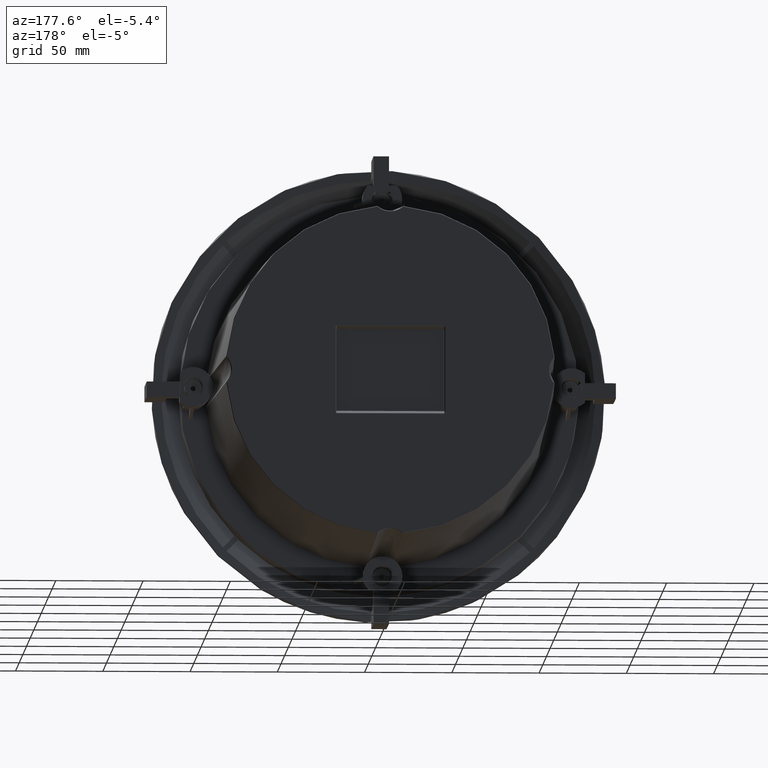
[diagram: clean part render]
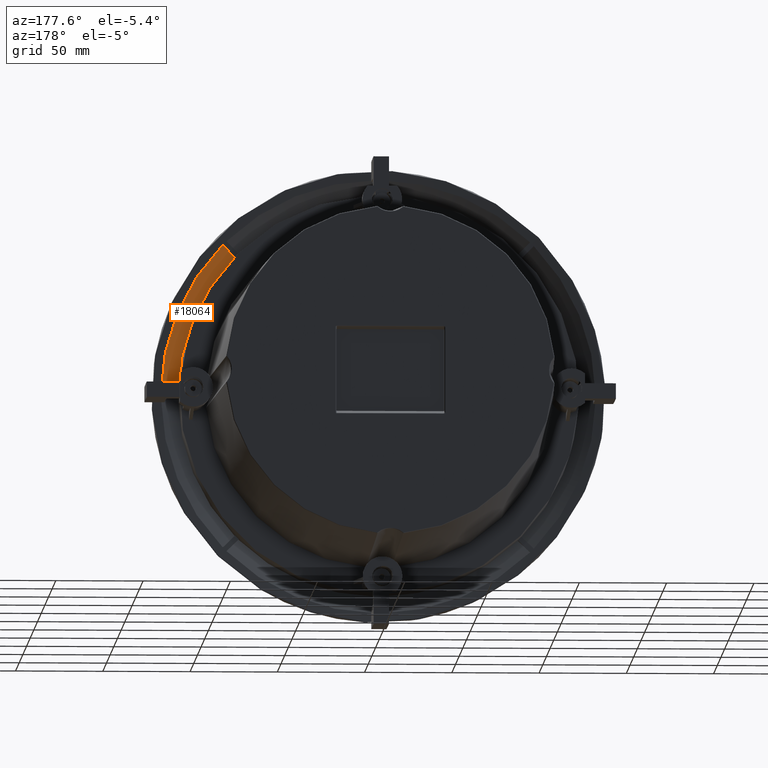
[diagram: same view with one face highlighted and labeled with its STEP entity id]
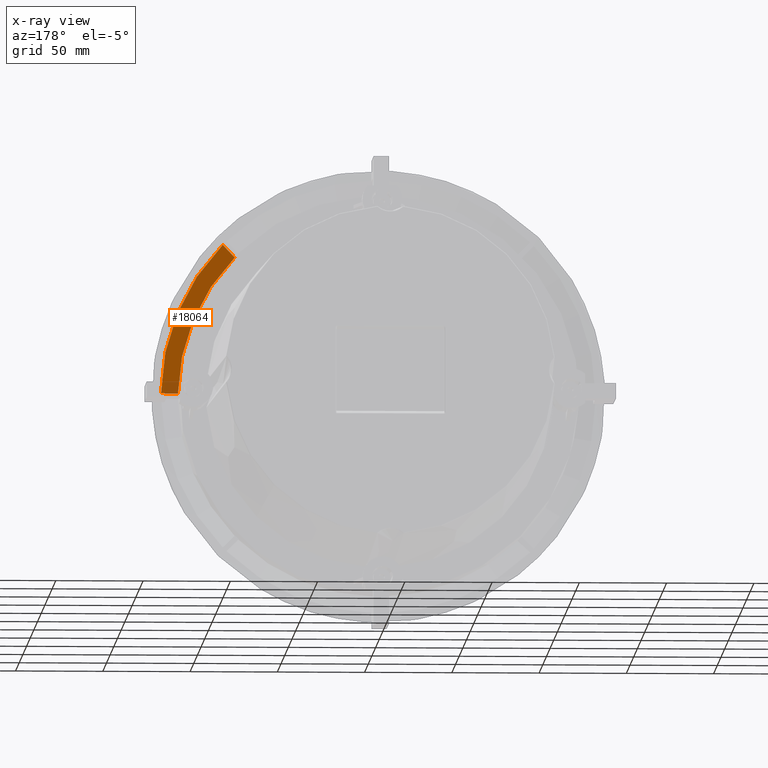
[diagram: x-ray of the same camera — body ghosted, the highlighted face saturated]
A machine part, auxiliary view. The second image highlights one B-rep face of the part: STEP entity #18064.
The next image is the same camera in x-ray: the body ghosted, the highlighted face saturated — about 6% of this face is hidden behind the body in this view.
In plain terms, the highlighted face is a freeform B-spline surface patch.
Its self-contained STEP definition (entity closure, byte-faithful):
#322 = ORIENTED_EDGE ( 'NONE', *, *, #4217, .T. ) ;
#506 = CARTESIAN_POINT ( 'NONE',  ( 129.0369081615271512, -10.92431406673331473, 5.297369443046178183 ) ) ;
#843 = VERTEX_POINT ( 'NONE', #13102 ) ;
#1086 = CARTESIAN_POINT ( 'NONE',  ( 124.5276669081170269, -12.32490501161358409, 1.499999999999757305 ) ) ;
#1113 = CARTESIAN_POINT ( 'NONE',  ( 0.0000000000000000000, -15.66972298474831859, 1.283914725491116015E-14 ) ) ;
#1142 = CARTESIAN_POINT ( 'NONE',  ( 1.060660171779398198, 337.6458333333299606, -1.060660171779389094 ) ) ;
#2001 = FACE_OUTER_BOUND ( 'NONE', #13380, .T. ) ;
#2644 = CARTESIAN_POINT ( 'NONE',  ( 89.11501788784875089, -12.32490501161354501, 86.99369754428967383 ) ) ;
#2837 = DIRECTION ( 'NONE',  ( 1.984726363220650799E-17, 1.000000000000000000, -1.984726363220650799E-17 ) ) ;
#3446 = CARTESIAN_POINT ( 'NONE',  ( 119.9240959355423115, -13.56180508981008970, 36.05439748969068603 ) ) ;
#3547 = CARTESIAN_POINT ( 'NONE',  ( 79.81653812744401932, -17.01416243087751212, 77.69521778388703126 ) ) ;
#3592 = AXIS2_PLACEMENT_3D ( 'NONE', #1113, #11731, #8009 ) ;
#4217 = EDGE_CURVE ( 'NONE', #19017, #843, #11850, .T. ) ;
#4456 = DIRECTION ( 'NONE',  ( 2.369079274957320044E-18, 1.000000000000000000, -2.369079274957328133E-18 ) ) ;
#5146 = CARTESIAN_POINT ( 'NONE',  ( 129.2987330428821053, -8.834233225523517419, 45.42903459703045144 ) ) ;
#5592 = EDGE_CURVE ( 'NONE', #17444, #15842, #17982, .T. ) ;
#6556 = AXIS2_PLACEMENT_3D ( 'NONE', #1142, #13677, #2837 ) ;
#7370 = CARTESIAN_POINT ( 'NONE',  ( -9.709641540802917083E-15, -12.32490501161353436, 2.254878879571411194E-14 ) ) ;
#8009 = DIRECTION ( 'NONE',  ( -0.7071067811865486830, 0.0000000000000000000, -0.7071067811865462405 ) ) ;
#9587 = ORIENTED_EDGE ( 'NONE', *, *, #15310, .F. ) ;
#9905 = EDGE_CURVE ( 'NONE', #19017, #17444, #16935, .T. ) ;
#10071 = AXIS2_PLACEMENT_3D ( 'NONE', #7370, #4456, #13054 ) ;
#10342 = CARTESIAN_POINT ( 'NONE',  ( 60.38077549025775426, -24.22279664236803498, 58.25945514670080172 ) ) ;
#10564 = CARTESIAN_POINT ( 'NONE',  ( 80.87395438809723203, -24.10868612740769379, 37.72886461189807505 ) ) ;
#10964 = B_SPLINE_CURVE_WITH_KNOTS ( 'NONE', 3,
 ( #20212, #11698, #16515, #1086 ),
 .UNSPECIFIED., .F., .F.,
 ( 4, 4 ),
 ( 0.0000000000000000000, 0.01038669990619619891 ),
 .UNSPECIFIED. ) ;
#11164 = ORIENTED_EDGE ( 'NONE', *, *, #9905, .F. ) ;
#11698 = CARTESIAN_POINT ( 'NONE',  ( 117.9876570138888070, -14.60061408458862608, 1.500000000000022649 ) ) ;
#11731 = DIRECTION ( 'NONE',  ( -0.0000000000000000000, 1.000000000000000000, -0.0000000000000000000 ) ) ;
#11850 = CIRCLE ( 'NONE', #10071, 124.5367007174148029 ) ;
#12025 = CARTESIAN_POINT ( 'NONE',  ( 110.3732202116409979, -17.52149236708379121, 26.50352176578935470 ) ) ;
#12136 = CARTESIAN_POINT ( 'NONE',  ( 119.5213102929666462, -14.04404490897399782, -4.218228425514287672 ) ) ;
#12357 = CARTESIAN_POINT ( 'NONE',  ( 100.3035882130587169, -16.90232506394354317, 57.15849843685948883 ) ) ;
#13054 = DIRECTION ( 'NONE',  ( -0.7071067811865462405, 0.0000000000000000000, 0.7071067811865487940 ) ) ;
#13102 = CARTESIAN_POINT ( 'NONE',  ( 124.5276669081170269, -12.32490501161358409, 1.499999999999757305 ) ) ;
#13380 = EDGE_LOOP ( 'NONE', ( #322, #9587, #15273, #11164 ) ) ;
#13677 = DIRECTION ( 'NONE',  ( 0.7071067811865463515, -2.816849375685649892E-17, -0.7071067811865487940 ) ) ;
#14966 = CARTESIAN_POINT ( 'NONE',  ( 114.6942683262824829, -15.66972298475744552, 1.499999999998432143 ) ) ;
#15273 = ORIENTED_EDGE ( 'NONE', *, *, #5592, .F. ) ;
#15310 = EDGE_CURVE ( 'NONE', #15842, #843, #10964, .T. ) ;
#15478 = CARTESIAN_POINT ( 'NONE',  ( 82.16175506852441401, -15.66972298475678294, 80.04043472496748279 ) ) ;
#15735 = CARTESIAN_POINT ( 'NONE',  ( 109.7673924086996919, -12.12978678516580722, 66.62230263250042128 ) ) ;
#15842 = VERTEX_POINT ( 'NONE', #14966 ) ;
#15955 = CARTESIAN_POINT ( 'NONE',  ( 89.28332755066935533, -12.24011872018015978, 87.16200720711229621 ) ) ;
#16515 = CARTESIAN_POINT ( 'NONE',  ( 121.2654565411435499, -13.48567476020409117, 1.499999999999776623 ) ) ;
#16935 = CIRCLE ( 'NONE', #6556, 371.4655536160572638 ) ;
#17444 = VERTEX_POINT ( 'NONE', #15478 ) ;
#17624 = CARTESIAN_POINT ( 'NONE',  ( 147.6108825106541644, -2.398419423963016328, 23.87134379217312841 ) ) ;
#17982 = CIRCLE ( 'NONE', #3592, 114.7040765922692174 ) ;
#18064 = ADVANCED_FACE ( 'NONE', ( #2001 ), #20660, .F. ) ;
#18895 = CARTESIAN_POINT ( 'NONE',  ( 70.17177766895353841, -21.01277327912308834, 68.05045732539656456 ) ) ;
#19002 = CARTESIAN_POINT ( 'NONE',  ( 100.6775263244123266, -20.70026848548733511, 16.80782787856071536 ) ) ;
#19017 = VERTEX_POINT ( 'NONE', #2644 ) ;
#19218 = CARTESIAN_POINT ( 'NONE',  ( 90.66186910297875556, -20.89967500282803314, 47.51677932677952043 ) ) ;
#20212 = CARTESIAN_POINT ( 'NONE',  ( 114.6942683262824829, -15.66972298475744552, 1.499999999998432143 ) ) ;
#20660 =( BOUNDED_SURFACE ( )  B_SPLINE_SURFACE ( 3, 3, ( 
 ( #17624, #20889, #506, #12136 ),
 ( #5146, #3446, #12025, #19002 ),
 ( #15735, #12357, #19218, #10564 ),
 ( #15955, #3547, #18895, #10342 ) ),
 .UNSPECIFIED., .F., .F., .T. ) 
 B_SPLINE_SURFACE_WITH_KNOTS ( ( 4, 4 ),
 ( 4, 4 ),
 ( 0.0000000000000000000, 1.000000000000000000 ),
 ( 0.0000000000000000000, 1.000000000000000000 ),
 .UNSPECIFIED. ) 
 GEOMETRIC_REPRESENTATION_ITEM ( )  RATIONAL_B_SPLINE_SURFACE ( (
 ( 1.000000000000000000, 0.9989034006185222303, 0.9989034006185222303, 1.000000000000000000),
 ( 0.9954523186169803584, 0.9943607062200943147, 0.9943607062200943147, 0.9954523186169803584),
 ( 0.9954523186169803584, 0.9943607062200943147, 0.9943607062200943147, 0.9954523186169803584),
 ( 1.000000000000000000, 0.9989034006185222303, 0.9989034006185222303, 1.000000000000000000) ) ) 
 REPRESENTATION_ITEM ( '' )  SURFACE ( )  );
#20889 = CARTESIAN_POINT ( 'NONE',  ( 138.4103778418100035, -7.038177369964976116, 14.67083912332901896 ) ) ;